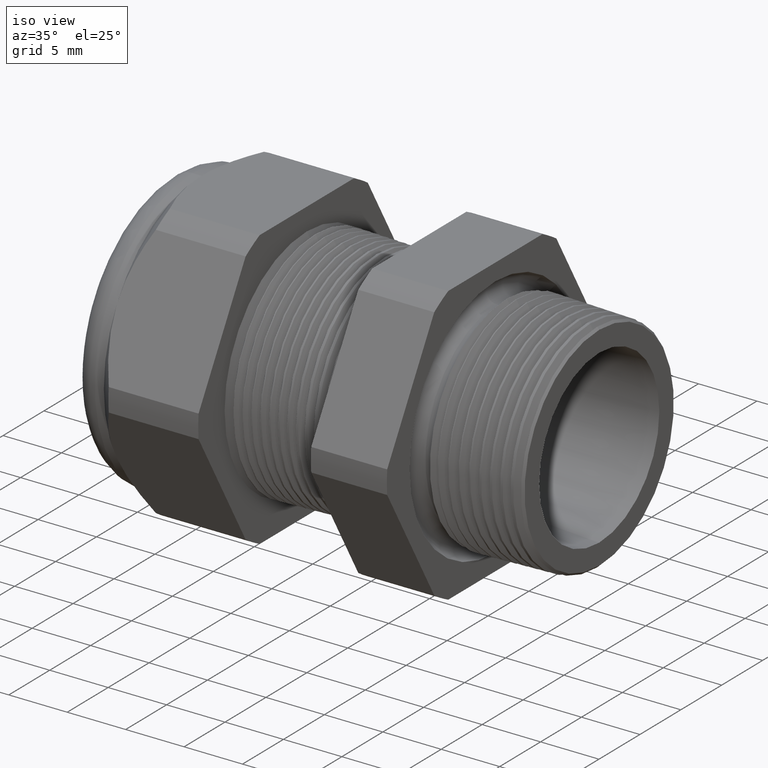
[diagram: clean part render]
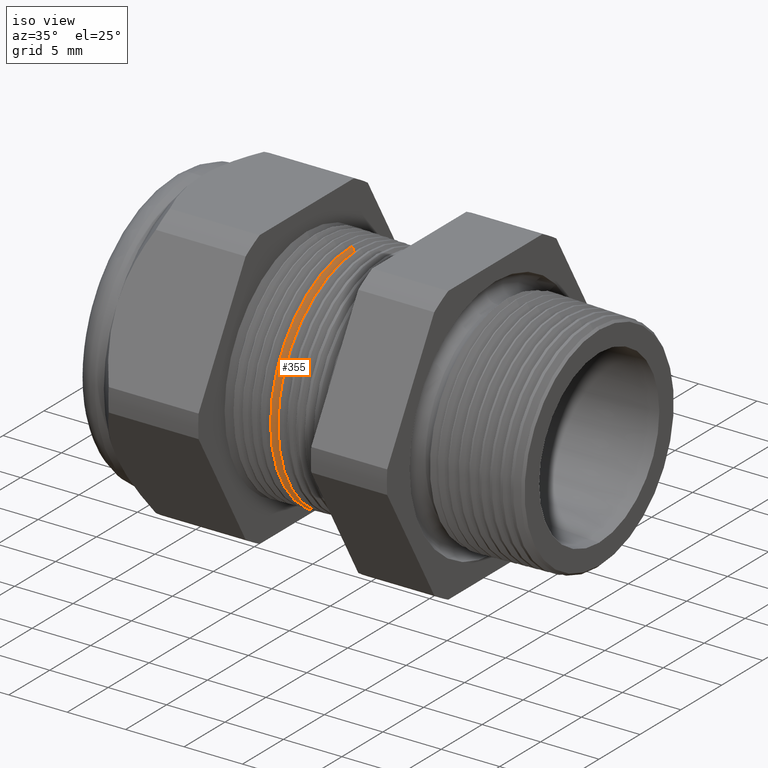
[diagram: same view with one face highlighted and labeled with its STEP entity id]
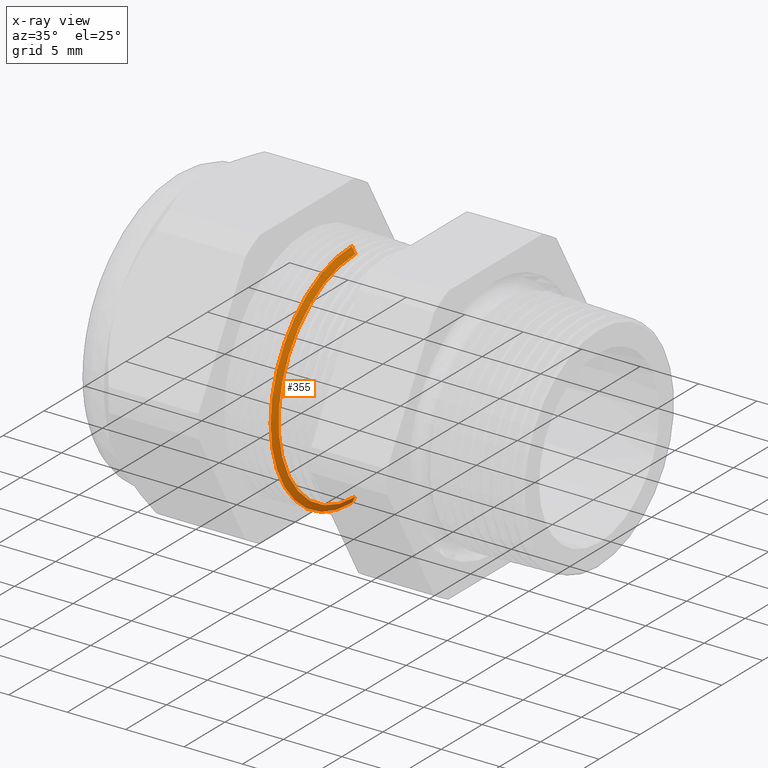
[diagram: x-ray of the same camera — body ghosted, the highlighted face saturated]
A machine part, iso view. The second image highlights one B-rep face of the part: STEP entity #355.
The next image is the same camera in x-ray: the body ghosted, the highlighted face saturated — about 5% of this face is hidden behind the body in this view.
In plain terms, the highlighted conical surface has half-angle 61.5 deg.
Its self-contained STEP definition (entity closure, byte-faithful):
#355 = ADVANCED_FACE ( 'NONE', ( #2349 ), #2348, .T. ) ;
#356 = EDGE_LOOP ( 'NONE', ( #357, #358, #415, #416 ) ) ;
#357 = ORIENTED_EDGE ( 'NONE', *, *, #1297, .F. ) ;
#358 = ORIENTED_EDGE ( 'NONE', *, *, #359, .F. ) ;
#359 = EDGE_CURVE ( 'NONE', #1350, #1349, #2343, .T. ) ;
#415 = ORIENTED_EDGE ( 'NONE', *, *, #1290, .T. ) ;
#416 = ORIENTED_EDGE ( 'NONE', *, *, #1692, .T. ) ;
#1288 = VERTEX_POINT ( 'NONE', #3969 ) ;
#1290 = EDGE_CURVE ( 'NONE', #1350, #1288, #3968, .T. ) ;
#1297 = EDGE_CURVE ( 'NONE', #1349, #1298, #4014, .T. ) ;
#1298 = VERTEX_POINT ( 'NONE', #4010 ) ;
#1349 = VERTEX_POINT ( 'NONE', #4094 ) ;
#1350 = VERTEX_POINT ( 'NONE', #4093 ) ;
#1692 = EDGE_CURVE ( 'NONE', #1288, #1298, #4743, .T. ) ;
#2340 = DIRECTION ( 'NONE',  ( 0.0000000000000000000, 0.0000000000000000000, -1.000000000000000000 ) ) ;
#2341 = DIRECTION ( 'NONE',  ( 1.000000000000000000, 0.0000000000000000000, 0.0000000000000000000 ) ) ;
#2342 = AXIS2_PLACEMENT_3D ( 'NONE', #2347, #2341, #2340 ) ;
#2343 = CIRCLE ( 'NONE', #2342, 0.3696307351718083300 ) ;
#2344 = DIRECTION ( 'NONE',  ( 0.0000000000000000000, 0.0000000000000000000, 1.000000000000000000 ) ) ;
#2345 = DIRECTION ( 'NONE',  ( -1.000000000000000000, 0.0000000000000000000, 0.0000000000000000000 ) ) ;
#2346 = AXIS2_PLACEMENT_3D ( 'NONE', #2352, #2345, #2344 ) ;
#2347 = CARTESIAN_POINT ( 'NONE',  ( -0.7816586839320379700, 0.0000000000000000000, 0.0000000000000000000 ) ) ;
#2348 = CONICAL_SURFACE ( 'NONE', #2346, 0.3950000000000000200, 1.073377489976500500 ) ;
#2349 = FACE_OUTER_BOUND ( 'NONE', #356, .T. ) ;
#2352 = CARTESIAN_POINT ( 'NONE',  ( -0.7954330708661420100, 0.0000000000000000000, 0.0000000000000000000 ) ) ;
#3965 = DIRECTION ( 'NONE',  ( -0.4771587602596191200, 0.0000000000000000000, 0.8788171126619595000 ) ) ;
#3966 = VECTOR ( 'NONE', #3965, 39.37007874015748100 ) ;
#3967 = CARTESIAN_POINT ( 'NONE',  ( -0.7954330708661420100, 0.0000000000000000000, 0.3950000000000000200 ) ) ;
#3968 = LINE ( 'NONE', #3967, #3966 ) ;
#3969 = CARTESIAN_POINT ( 'NONE',  ( -0.7932696423776625100, 0.0000000000000000000, 0.3910154603959032400 ) ) ;
#4010 = CARTESIAN_POINT ( 'NONE',  ( -0.7932696423776625100, 4.789392262317096300E-017, -0.3910154603959032400 ) ) ;
#4011 = DIRECTION ( 'NONE',  ( -0.4771587602596191200, 1.076240564057387800E-016, -0.8788171126619595000 ) ) ;
#4012 = VECTOR ( 'NONE', #4011, 39.37007874015748100 ) ;
#4013 = CARTESIAN_POINT ( 'NONE',  ( -0.7954330708661420100, 4.837354856632045600E-017, -0.3950000000000000200 ) ) ;
#4014 = LINE ( 'NONE', #4013, #4012 ) ;
#4093 = CARTESIAN_POINT ( 'NONE',  ( -0.7816586839320379700, 0.0000000000000000000, 0.3696307351718083300 ) ) ;
#4094 = CARTESIAN_POINT ( 'NONE',  ( -0.7816586839320379700, 4.657614643428047800E-017, -0.3696307351718083300 ) ) ;
#4740 = DIRECTION ( 'NONE',  ( 0.0000000000000000000, 0.0000000000000000000, 1.000000000000000000 ) ) ;
#4741 = DIRECTION ( 'NONE',  ( 1.000000000000000000, 0.0000000000000000000, 0.0000000000000000000 ) ) ;
#4742 = AXIS2_PLACEMENT_3D ( 'NONE', #4749, #4741, #4740 ) ;
#4743 = CIRCLE ( 'NONE', #4742, 0.3910154603959032400 ) ;
#4749 = CARTESIAN_POINT ( 'NONE',  ( -0.7932696423776625100, 0.0000000000000000000, 0.0000000000000000000 ) ) ;